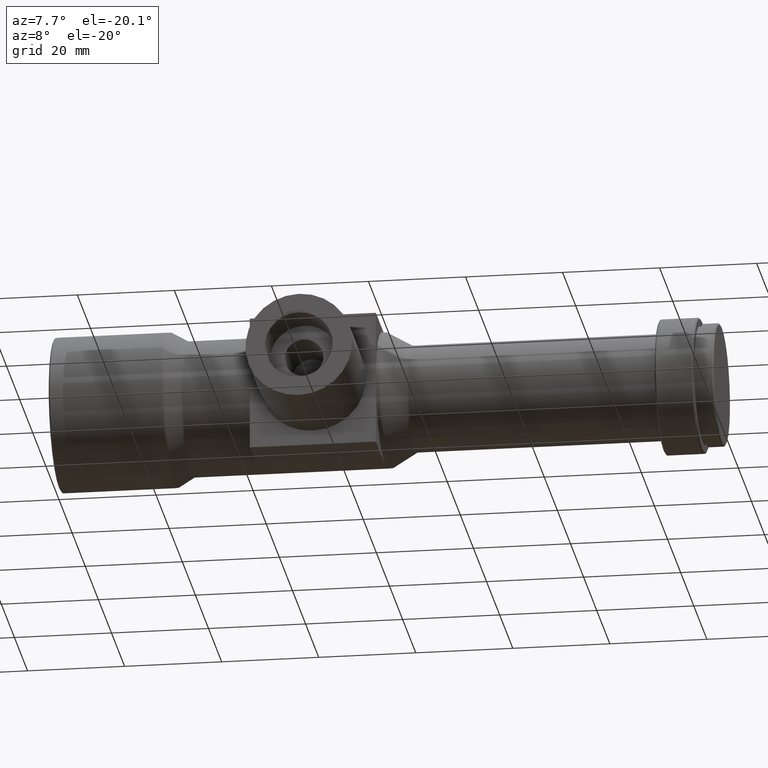
[diagram: clean part render]
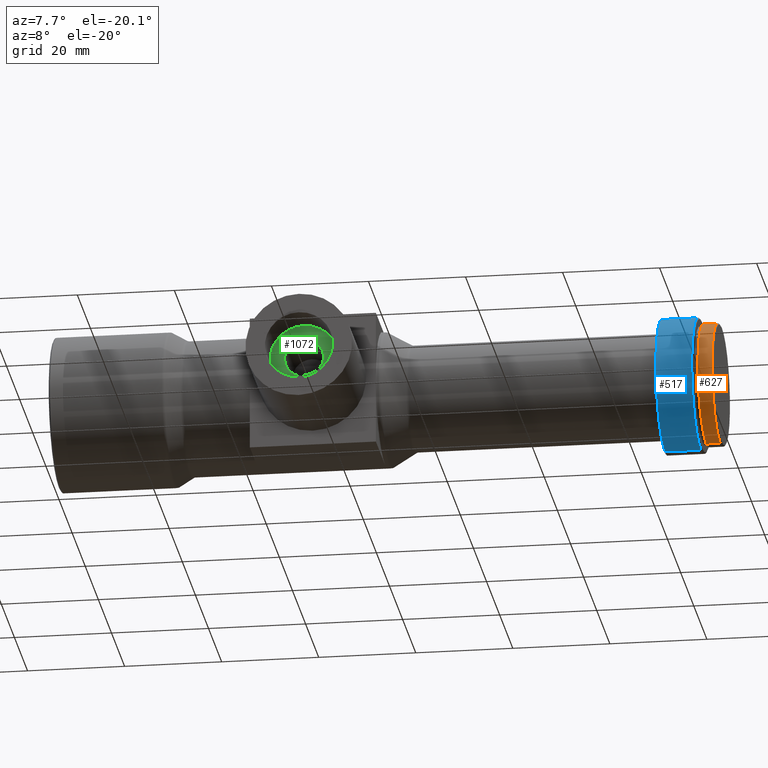
[diagram: same view with three faces highlighted in distinct colors, each labeled with its STEP entity id]
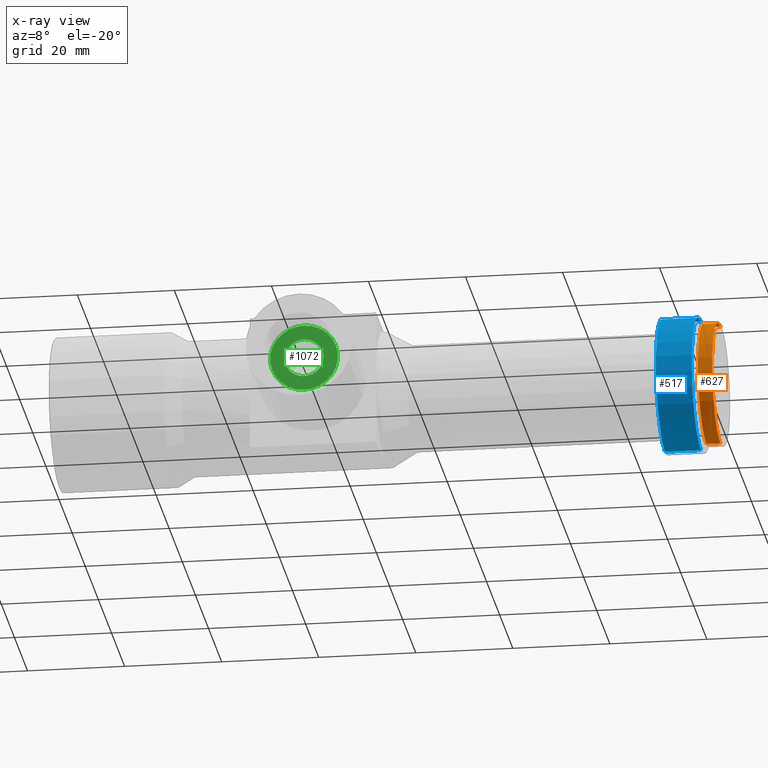
[diagram: x-ray of the same camera — body ghosted, the three highlighted faces saturated]
A machine part, auxiliary view with three faces highlighted in distinct colors.
The next image is the same camera in x-ray (body ghosted, the three faces saturated) — at least one of them is partly hidden behind the body in this view.
Their STEP definitions:

[orange] entity #627 — the highlighted cylindrical surface (partial cylindrical patch) has radius 12.7 mm, axis along (-1, -0, -0).
#116 = AXIS2_PLACEMENT_3D ( 'NONE', #311, #302, #655 ) ;
#227 = EDGE_CURVE ( 'NONE', #663, #1099, #1477, .T. ) ;
#244 = DIRECTION ( 'NONE',  ( -1.000000000000000000, -0.0000000000000000000, -0.0000000000000000000 ) ) ;
#254 = FACE_OUTER_BOUND ( 'NONE', #548, .T. ) ;
#255 = VERTEX_POINT ( 'NONE', #1475 ) ;
#302 = DIRECTION ( 'NONE',  ( -1.000000000000000000, -0.0000000000000000000, -0.0000000000000000000 ) ) ;
#311 = CARTESIAN_POINT ( 'NONE',  ( 136.3000000000000100, 0.0000000000000000000, 0.0000000000000000000 ) ) ;
#321 = CARTESIAN_POINT ( 'NONE',  ( 0.0000000000000000000, 0.0000000000000000000, 0.0000000000000000000 ) ) ;
#324 = ORIENTED_EDGE ( 'NONE', *, *, #972, .F. ) ;
#394 = ORIENTED_EDGE ( 'NONE', *, *, #1127, .T. ) ;
#427 = VECTOR ( 'NONE', #244, 1000.000000000000000 ) ;
#448 = LINE ( 'NONE', #982, #547 ) ;
#547 = VECTOR ( 'NONE', #1220, 1000.000000000000000 ) ;
#548 = EDGE_LOOP ( 'NONE', ( #620, #394, #1410, #324 ) ) ;
#586 = VERTEX_POINT ( 'NONE', #1101 ) ;
#600 = CARTESIAN_POINT ( 'NONE',  ( 133.3999999999999800, 0.0000000000000000000, 0.0000000000000000000 ) ) ;
#620 = ORIENTED_EDGE ( 'NONE', *, *, #227, .F. ) ;
#627 = ADVANCED_FACE ( 'NONE', ( #254 ), #1269, .T. ) ;
#655 = DIRECTION ( 'NONE',  ( 0.0000000000000000000, 0.0000000000000000000, 1.000000000000000000 ) ) ;
#663 = VERTEX_POINT ( 'NONE', #1038 ) ;
#683 = CIRCLE ( 'NONE', #116, 12.70000000000001400 ) ;
#716 = CARTESIAN_POINT ( 'NONE',  ( 0.0000000000000000000, 1.555301434917140200E-015, -12.70000000000001400 ) ) ;
#721 = CIRCLE ( 'NONE', #1166, 12.70000000000001400 ) ;
#724 = DIRECTION ( 'NONE',  ( 0.0000000000000000000, 0.0000000000000000000, 1.000000000000000000 ) ) ;
#972 = EDGE_CURVE ( 'NONE', #1099, #255, #721, .T. ) ;
#982 = CARTESIAN_POINT ( 'NONE',  ( 0.0000000000000000000, 0.0000000000000000000, 12.70000000000001400 ) ) ;
#1028 = DIRECTION ( 'NONE',  ( -1.000000000000000000, -0.0000000000000000000, -0.0000000000000000000 ) ) ;
#1038 = CARTESIAN_POINT ( 'NONE',  ( 136.3000000000000100, 1.555301434917140200E-015, -12.70000000000001400 ) ) ;
#1099 = VERTEX_POINT ( 'NONE', #1210 ) ;
#1101 = CARTESIAN_POINT ( 'NONE',  ( 136.3000000000000100, 0.0000000000000000000, 12.70000000000001400 ) ) ;
#1127 = EDGE_CURVE ( 'NONE', #663, #586, #683, .T. ) ;
#1166 = AXIS2_PLACEMENT_3D ( 'NONE', #600, #1028, #724 ) ;
#1193 = AXIS2_PLACEMENT_3D ( 'NONE', #321, #1271, #1266 ) ;
#1210 = CARTESIAN_POINT ( 'NONE',  ( 133.3999999999999800, 1.555301434917140200E-015, -12.70000000000001400 ) ) ;
#1220 = DIRECTION ( 'NONE',  ( -1.000000000000000000, -0.0000000000000000000, -0.0000000000000000000 ) ) ;
#1266 = DIRECTION ( 'NONE',  ( 0.0000000000000000000, 0.0000000000000000000, 1.000000000000000000 ) ) ;
#1269 = CYLINDRICAL_SURFACE ( 'NONE', #1193, 12.70000000000001400 ) ;
#1271 = DIRECTION ( 'NONE',  ( -1.000000000000000000, -0.0000000000000000000, -0.0000000000000000000 ) ) ;
#1410 = ORIENTED_EDGE ( 'NONE', *, *, #1447, .T. ) ;
#1447 = EDGE_CURVE ( 'NONE', #586, #255, #448, .T. ) ;
#1475 = CARTESIAN_POINT ( 'NONE',  ( 133.3999999999999800, 0.0000000000000000000, 12.70000000000001400 ) ) ;
#1477 = LINE ( 'NONE', #716, #427 ) ;

[blue] entity #517 — the highlighted cylindrical surface (partial cylindrical patch) has radius 14 mm, axis along (-1, -0, -0).
#73 = DIRECTION ( 'NONE',  ( 0.0000000000000000000, 0.0000000000000000000, 1.000000000000000000 ) ) ;
#98 = VECTOR ( 'NONE', #1427, 1000.000000000000000 ) ;
#104 = ORIENTED_EDGE ( 'NONE', *, *, #882, .F. ) ;
#143 = LINE ( 'NONE', #1300, #98 ) ;
#196 = CARTESIAN_POINT ( 'NONE',  ( 124.8999999999999800, 1.714505518806294600E-015, 14.00000000000000000 ) ) ;
#241 = VECTOR ( 'NONE', #575, 1000.000000000000000 ) ;
#309 = EDGE_LOOP ( 'NONE', ( #104, #1288, #1327, #692 ) ) ;
#328 = CIRCLE ( 'NONE', #1192, 14.00000000000000000 ) ;
#352 = CARTESIAN_POINT ( 'NONE',  ( 0.0000000000000000000, 1.714505518806294600E-015, -14.00000000000000000 ) ) ;
#359 = CYLINDRICAL_SURFACE ( 'NONE', #484, 14.00000000000000000 ) ;
#409 = CARTESIAN_POINT ( 'NONE',  ( 0.0000000000000000000, 0.0000000000000000000, 0.0000000000000000000 ) ) ;
#452 = EDGE_CURVE ( 'NONE', #1394, #1411, #751, .T. ) ;
#484 = AXIS2_PLACEMENT_3D ( 'NONE', #409, #877, #1414 ) ;
#517 = ADVANCED_FACE ( 'NONE', ( #799 ), #359, .T. ) ;
#537 = CARTESIAN_POINT ( 'NONE',  ( 132.3000000000000100, 0.0000000000000000000, 14.00000000000000000 ) ) ;
#575 = DIRECTION ( 'NONE',  ( -1.000000000000000000, -0.0000000000000000000, -0.0000000000000000000 ) ) ;
#636 = CARTESIAN_POINT ( 'NONE',  ( 124.8999999999999800, 0.0000000000000000000, 0.0000000000000000000 ) ) ;
#692 = ORIENTED_EDGE ( 'NONE', *, *, #452, .F. ) ;
#751 = CIRCLE ( 'NONE', #1438, 14.00000000000000000 ) ;
#778 = CARTESIAN_POINT ( 'NONE',  ( 124.8999999999999800, 0.0000000000000000000, -14.00000000000000000 ) ) ;
#799 = FACE_OUTER_BOUND ( 'NONE', #309, .T. ) ;
#877 = DIRECTION ( 'NONE',  ( -1.000000000000000000, -0.0000000000000000000, -0.0000000000000000000 ) ) ;
#882 = EDGE_CURVE ( 'NONE', #1196, #1394, #1223, .T. ) ;
#1068 = EDGE_CURVE ( 'NONE', #1339, #1411, #143, .T. ) ;
#1192 = AXIS2_PLACEMENT_3D ( 'NONE', #1456, #1445, #1342 ) ;
#1196 = VERTEX_POINT ( 'NONE', #1294 ) ;
#1223 = LINE ( 'NONE', #352, #241 ) ;
#1288 = ORIENTED_EDGE ( 'NONE', *, *, #1333, .T. ) ;
#1294 = CARTESIAN_POINT ( 'NONE',  ( 132.3000000000000100, 1.714505518806294600E-015, -14.00000000000000000 ) ) ;
#1300 = CARTESIAN_POINT ( 'NONE',  ( 0.0000000000000000000, 0.0000000000000000000, 14.00000000000000000 ) ) ;
#1327 = ORIENTED_EDGE ( 'NONE', *, *, #1068, .T. ) ;
#1333 = EDGE_CURVE ( 'NONE', #1196, #1339, #328, .T. ) ;
#1339 = VERTEX_POINT ( 'NONE', #537 ) ;
#1342 = DIRECTION ( 'NONE',  ( 0.0000000000000000000, 0.0000000000000000000, 1.000000000000000000 ) ) ;
#1394 = VERTEX_POINT ( 'NONE', #778 ) ;
#1411 = VERTEX_POINT ( 'NONE', #196 ) ;
#1414 = DIRECTION ( 'NONE',  ( 0.0000000000000000000, 0.0000000000000000000, 1.000000000000000000 ) ) ;
#1426 = DIRECTION ( 'NONE',  ( -1.000000000000000000, -0.0000000000000000000, -0.0000000000000000000 ) ) ;
#1427 = DIRECTION ( 'NONE',  ( -1.000000000000000000, -0.0000000000000000000, -0.0000000000000000000 ) ) ;
#1438 = AXIS2_PLACEMENT_3D ( 'NONE', #636, #1426, #73 ) ;
#1445 = DIRECTION ( 'NONE',  ( -1.000000000000000000, -0.0000000000000000000, -0.0000000000000000000 ) ) ;
#1456 = CARTESIAN_POINT ( 'NONE',  ( 132.3000000000000100, 0.0000000000000000000, 0.0000000000000000000 ) ) ;

[green] entity #1072 — the highlighted planar face has unit normal (0, -1, 0).
#45 = AXIS2_PLACEMENT_3D ( 'NONE', #869, #284, #1078 ) ;
#71 = DIRECTION ( 'NONE',  ( 0.0000000000000000000, -1.000000000000000000, 0.0000000000000000000 ) ) ;
#76 = ORIENTED_EDGE ( 'NONE', *, *, #1036, .F. ) ;
#83 = EDGE_CURVE ( 'NONE', #907, #494, #957, .T. ) ;
#142 = AXIS2_PLACEMENT_3D ( 'NONE', #746, #1409, #737 ) ;
#190 = AXIS2_PLACEMENT_3D ( 'NONE', #949, #71, #666 ) ;
#206 = CIRCLE ( 'NONE', #45, 3.999999999999996400 ) ;
#212 = DIRECTION ( 'NONE',  ( -0.0000000000000000000, 1.000000000000000000, -0.0000000000000000000 ) ) ;
#223 = CARTESIAN_POINT ( 'NONE',  ( 54.20000000000001000, -27.40000000000000200, 6.999999999999992000 ) ) ;
#284 = DIRECTION ( 'NONE',  ( -0.0000000000000000000, 1.000000000000000000, -0.0000000000000000000 ) ) ;
#315 = FACE_BOUND ( 'NONE', #544, .T. ) ;
#366 = EDGE_CURVE ( 'NONE', #1279, #1039, #1159, .T. ) ;
#372 = CARTESIAN_POINT ( 'NONE',  ( 54.20000000000001000, -27.40000000000000200, 0.0000000000000000000 ) ) ;
#425 = AXIS2_PLACEMENT_3D ( 'NONE', #1345, #212, #1471 ) ;
#493 = DIRECTION ( 'NONE',  ( -0.0000000000000000000, 1.000000000000000000, -0.0000000000000000000 ) ) ;
#494 = VERTEX_POINT ( 'NONE', #969 ) ;
#530 = EDGE_CURVE ( 'NONE', #1039, #1279, #206, .T. ) ;
#544 = EDGE_LOOP ( 'NONE', ( #897, #852 ) ) ;
#646 = CIRCLE ( 'NONE', #142, 6.999999999999992000 ) ;
#666 = DIRECTION ( 'NONE',  ( 0.0000000000000000000, -0.0000000000000000000, -1.000000000000000000 ) ) ;
#737 = DIRECTION ( 'NONE',  ( 0.0000000000000000000, 0.0000000000000000000, 1.000000000000000000 ) ) ;
#746 = CARTESIAN_POINT ( 'NONE',  ( 54.20000000000001000, -27.40000000000000200, 0.0000000000000000000 ) ) ;
#752 = CARTESIAN_POINT ( 'NONE',  ( 54.20000000000001000, -27.40000000000000200, 3.999999999999996400 ) ) ;
#795 = ORIENTED_EDGE ( 'NONE', *, *, #83, .F. ) ;
#831 = EDGE_LOOP ( 'NONE', ( #795, #76 ) ) ;
#852 = ORIENTED_EDGE ( 'NONE', *, *, #366, .T. ) ;
#869 = CARTESIAN_POINT ( 'NONE',  ( 54.20000000000001000, -27.40000000000000200, 0.0000000000000000000 ) ) ;
#897 = ORIENTED_EDGE ( 'NONE', *, *, #530, .T. ) ;
#907 = VERTEX_POINT ( 'NONE', #223 ) ;
#949 = CARTESIAN_POINT ( 'NONE',  ( 47.20000000000001700, -27.40000000000000200, 0.0000000000000000000 ) ) ;
#957 = CIRCLE ( 'NONE', #425, 6.999999999999992000 ) ;
#969 = CARTESIAN_POINT ( 'NONE',  ( 54.20000000000001000, -27.40000000000000200, -6.999999999999992000 ) ) ;
#986 = FACE_OUTER_BOUND ( 'NONE', #831, .T. ) ;
#1036 = EDGE_CURVE ( 'NONE', #494, #907, #646, .T. ) ;
#1039 = VERTEX_POINT ( 'NONE', #752 ) ;
#1072 = ADVANCED_FACE ( 'NONE', ( #315, #986 ), #1314, .T. ) ;
#1078 = DIRECTION ( 'NONE',  ( 0.0000000000000000000, 0.0000000000000000000, 1.000000000000000000 ) ) ;
#1153 = AXIS2_PLACEMENT_3D ( 'NONE', #372, #493, #1160 ) ;
#1159 = CIRCLE ( 'NONE', #1153, 3.999999999999996400 ) ;
#1160 = DIRECTION ( 'NONE',  ( 0.0000000000000000000, 0.0000000000000000000, 1.000000000000000000 ) ) ;
#1203 = CARTESIAN_POINT ( 'NONE',  ( 54.20000000000001000, -27.40000000000000200, -3.999999999999996400 ) ) ;
#1279 = VERTEX_POINT ( 'NONE', #1203 ) ;
#1314 = PLANE ( 'NONE',  #190 ) ;
#1345 = CARTESIAN_POINT ( 'NONE',  ( 54.20000000000001000, -27.40000000000000200, 0.0000000000000000000 ) ) ;
#1409 = DIRECTION ( 'NONE',  ( -0.0000000000000000000, 1.000000000000000000, -0.0000000000000000000 ) ) ;
#1471 = DIRECTION ( 'NONE',  ( 0.0000000000000000000, 0.0000000000000000000, 1.000000000000000000 ) ) ;